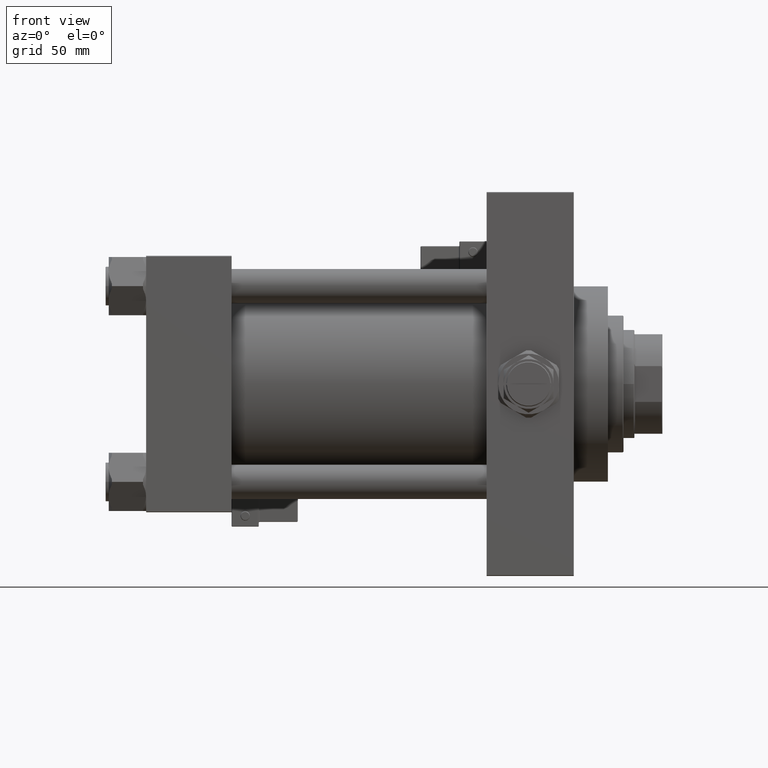
[diagram: clean part render]
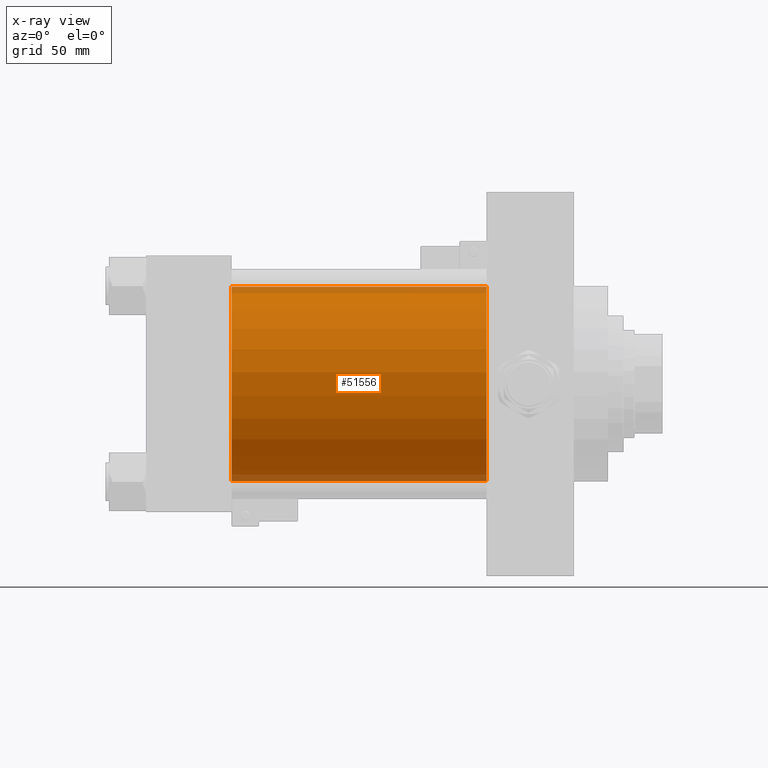
[diagram: x-ray — body ghosted, one internal face saturated and labeled with its STEP entity id]
A machine part, front view, then the same camera in x-ray: the body is ghosted and one INTERNAL B-rep face — a face not visible from any outside direction — is saturated and labeled: STEP entity #51556.
In plain terms, the highlighted cylindrical surface (partial cylindrical patch) has radius 62.5 mm, axis along (-1, -0, -0).
Its self-contained STEP definition (entity closure, byte-faithful):
#102 = CARTESIAN_POINT ( 'NONE',  ( 219.0000000000000000, 5.051957280705747162E-15, -62.50000000000000000 ) ) ;
#1762 = EDGE_CURVE ( 'NONE', #5062, #44560, #39777, .T. ) ;
#2178 = CIRCLE ( 'NONE', #21368, 62.50000000000000000 ) ;
#2745 = VERTEX_POINT ( 'NONE', #41201 ) ;
#4528 = DIRECTION ( 'NONE',  ( -1.000000000000000000, -0.000000000000000000, -0.000000000000000000 ) ) ;
#5062 = VERTEX_POINT ( 'NONE', #38242 ) ;
#5625 = CARTESIAN_POINT ( 'NONE',  ( 219.0000000000000000, -2.602085213965210642E-15, 62.50000000000000000 ) ) ;
#6014 = ORIENTED_EDGE ( 'NONE', *, *, #27676, .F. ) ;
#9811 = DIRECTION ( 'NONE',  ( 0.000000000000000000, 0.000000000000000000, -1.000000000000000000 ) ) ;
#12722 = CIRCLE ( 'NONE', #21036, 62.50000000000000000 ) ;
#13070 = AXIS2_PLACEMENT_3D ( 'NONE', #27281, #42900, #19688 ) ;
#15161 = CARTESIAN_POINT ( 'NONE',  ( 55.00000000000000000, -2.602085213965210642E-15, 0.000000000000000000 ) ) ;
#18081 = ORIENTED_EDGE ( 'NONE', *, *, #51378, .F. ) ;
#18887 = VECTOR ( 'NONE', #41619, 1000.000000000000000 ) ;
#19603 = DIRECTION ( 'NONE',  ( 0.000000000000000000, 0.000000000000000000, -1.000000000000000000 ) ) ;
#19688 = DIRECTION ( 'NONE',  ( 0.000000000000000000, 0.000000000000000000, 1.000000000000000000 ) ) ;
#21036 = AXIS2_PLACEMENT_3D ( 'NONE', #15161, #31102, #19603 ) ;
#21368 = AXIS2_PLACEMENT_3D ( 'NONE', #49703, #46050, #9811 ) ;
#24704 = CARTESIAN_POINT ( 'NONE',  ( 55.00000000000000000, -2.602085213965210642E-15, 62.50000000000000000 ) ) ;
#27281 = CARTESIAN_POINT ( 'NONE',  ( 219.0000000000000000, -2.602085213965210642E-15, 0.000000000000000000 ) ) ;
#27676 = EDGE_CURVE ( 'NONE', #34111, #44560, #12722, .T. ) ;
#31102 = DIRECTION ( 'NONE',  ( 1.000000000000000000, 0.000000000000000000, 0.000000000000000000 ) ) ;
#34111 = VERTEX_POINT ( 'NONE', #24704 ) ;
#35624 = FACE_OUTER_BOUND ( 'NONE', #45141, .T. ) ;
#38242 = CARTESIAN_POINT ( 'NONE',  ( 219.0000000000000000, 5.051957280705747162E-15, -62.50000000000000000 ) ) ;
#39417 = EDGE_CURVE ( 'NONE', #2745, #5062, #2178, .T. ) ;
#39777 = LINE ( 'NONE', #102, #43086 ) ;
#40906 = ORIENTED_EDGE ( 'NONE', *, *, #39417, .T. ) ;
#41201 = CARTESIAN_POINT ( 'NONE',  ( 219.0000000000000000, -2.602085213965210642E-15, 62.50000000000000000 ) ) ;
#41619 = DIRECTION ( 'NONE',  ( -1.000000000000000000, -0.000000000000000000, -0.000000000000000000 ) ) ;
#42122 = LINE ( 'NONE', #5625, #18887 ) ;
#42311 = CARTESIAN_POINT ( 'NONE',  ( 55.00000000000000000, 5.051957280705747162E-15, -62.50000000000000000 ) ) ;
#42383 = CYLINDRICAL_SURFACE ( 'NONE', #13070, 62.50000000000000000 ) ;
#42858 = ORIENTED_EDGE ( 'NONE', *, *, #1762, .T. ) ;
#42900 = DIRECTION ( 'NONE',  ( -1.000000000000000000, -0.000000000000000000, -0.000000000000000000 ) ) ;
#43086 = VECTOR ( 'NONE', #4528, 1000.000000000000000 ) ;
#44560 = VERTEX_POINT ( 'NONE', #42311 ) ;
#45141 = EDGE_LOOP ( 'NONE', ( #40906, #42858, #6014, #18081 ) ) ;
#46050 = DIRECTION ( 'NONE',  ( 1.000000000000000000, 0.000000000000000000, 0.000000000000000000 ) ) ;
#49703 = CARTESIAN_POINT ( 'NONE',  ( 219.0000000000000000, -2.602085213965210642E-15, 0.000000000000000000 ) ) ;
#51378 = EDGE_CURVE ( 'NONE', #2745, #34111, #42122, .T. ) ;
#51556 = ADVANCED_FACE ( 'NONE', ( #35624 ), #42383, .F. ) ;